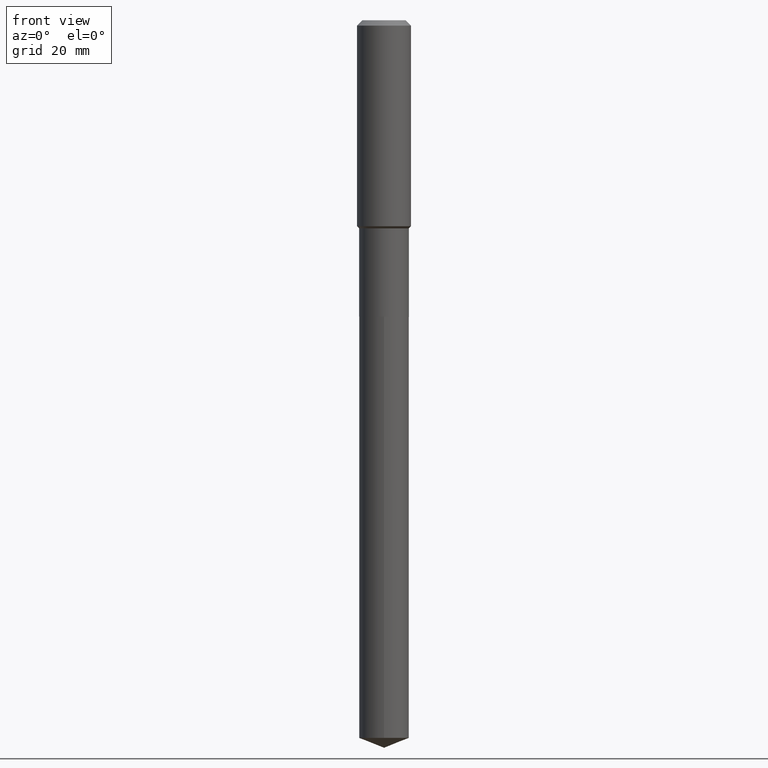
[diagram: clean part render]
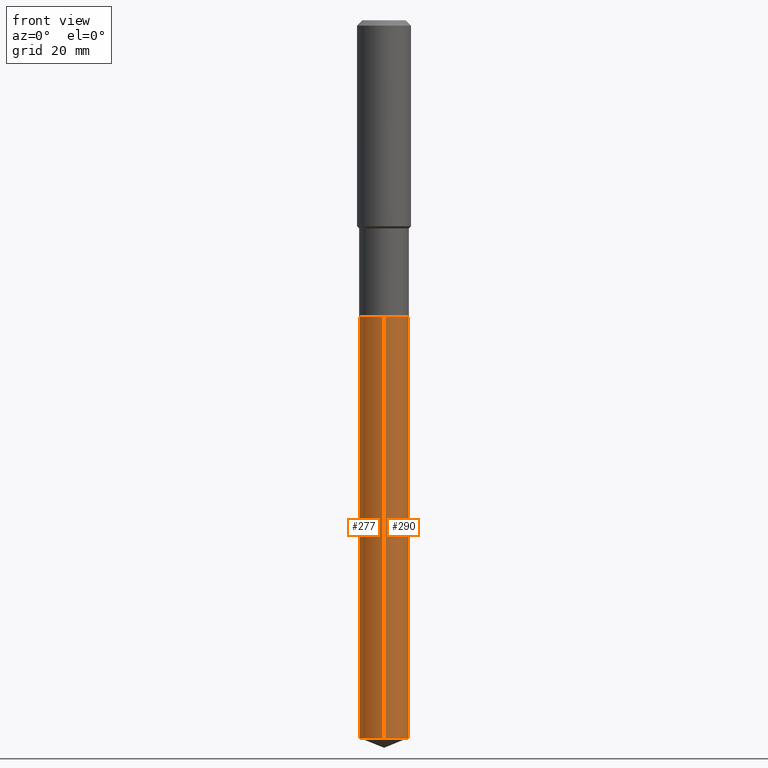
[diagram: same view with one multi-face feature highlighted, each face labeled with its STEP entity id]
A machine part, front view. The highlighted faces form ONE feature: a constant-radius fillet chain: 2 tangent blend faces with common blend radius 5.5499 mm. The faces share edges in the B-rep.
Their STEP definitions:
[1] entity #290 (Cylinder):
#22 = DIRECTION ( 'NONE',  ( -2.445449169258695004E-29, 3.491509460039474509E-15, 1.000000000000000000 ) ) ;
#33 = EDGE_CURVE ( 'NONE', #104, #265, #310, .T. ) ;
#46 = CARTESIAN_POINT ( 'NONE',  ( 1.552535877635972930E-15, 0.2184999999999909237, -2.598400000000001597 ) ) ;
#47 = DIRECTION ( 'NONE',  ( -2.445449169258695004E-29, 3.491509460039474509E-15, 1.000000000000000000 ) ) ;
#49 = ORIENTED_EDGE ( 'NONE', *, *, #206, .F. ) ;
#54 = DIRECTION ( 'NONE',  ( -2.445449169258695004E-29, 3.491509460039474509E-15, 1.000000000000000000 ) ) ;
#57 = DIRECTION ( 'NONE',  ( -6.982962677686265922E-15, -1.000000000000000000, 2.500547362621751271E-15 ) ) ;
#66 = VECTOR ( 'NONE', #482, 39.37007874015748143 ) ;
#69 = CARTESIAN_POINT ( 'NONE',  ( -1.525777345074385639E-15, -0.2185000000000090759, -2.598400000000000265 ) ) ;
#84 = EDGE_CURVE ( 'NONE', #265, #386, #287, .T. ) ;
#104 = VERTEX_POINT ( 'NONE', #261 ) ;
#116 = ORIENTED_EDGE ( 'NONE', *, *, #33, .T. ) ;
#145 = CARTESIAN_POINT ( 'NONE',  ( -1.525777345074385639E-15, -0.2185000000000090759, -2.598400000000000265 ) ) ;
#190 = ORIENTED_EDGE ( 'NONE', *, *, #84, .T. ) ;
#206 = EDGE_CURVE ( 'NONE', #285, #386, #442, .T. ) ;
#209 = EDGE_LOOP ( 'NONE', ( #116, #190, #49, #391 ) ) ;
#229 = LINE ( 'NONE', #145, #66 ) ;
#232 = EDGE_CURVE ( 'NONE', #104, #285, #229, .T. ) ;
#233 = AXIS2_PLACEMENT_3D ( 'NONE', #354, #47, #468 ) ;
#261 = CARTESIAN_POINT ( 'NONE',  ( -1.525777345074295314E-15, -0.2185000000000220099, -6.291830561078135098 ) ) ;
#263 = CYLINDRICAL_SURFACE ( 'NONE', #315, 0.2184999999999999998 ) ;
#265 = VERTEX_POINT ( 'NONE', #374 ) ;
#285 = VERTEX_POINT ( 'NONE', #69 ) ;
#287 = LINE ( 'NONE', #476, #302 ) ;
#290 = ADVANCED_FACE ( 'NONE', ( #490 ), #263, .T. ) ;
#300 = CARTESIAN_POINT ( 'NONE',  ( 6.354306145991460877E-29, -9.072265110850034200E-15, -2.598400000000000709 ) ) ;
#302 = VECTOR ( 'NONE', #22, 39.37007874015748143 ) ;
#310 = CIRCLE ( 'NONE', #233, 0.2184999999999999998 ) ;
#315 = AXIS2_PLACEMENT_3D ( 'NONE', #300, #372, #342 ) ;
#342 = DIRECTION ( 'NONE',  ( -6.982962677686265922E-15, -1.000000000000000000, 2.500547362621751271E-15 ) ) ;
#354 = CARTESIAN_POINT ( 'NONE',  ( 1.538640284329466373E-28, -2.196791285485324773E-14, -6.291830561078136874 ) ) ;
#369 = AXIS2_PLACEMENT_3D ( 'NONE', #398, #54, #57 ) ;
#372 = DIRECTION ( 'NONE',  ( -2.445449169258695004E-29, 3.491509460039474509E-15, 1.000000000000000000 ) ) ;
#374 = CARTESIAN_POINT ( 'NONE',  ( 1.552535877635972930E-15, 0.2184999999999780729, -6.291830561078137762 ) ) ;
#386 = VERTEX_POINT ( 'NONE', #46 ) ;
#391 = ORIENTED_EDGE ( 'NONE', *, *, #232, .F. ) ;
#398 = CARTESIAN_POINT ( 'NONE',  ( 6.354306145991460877E-29, -9.072265110850034200E-15, -2.598400000000000709 ) ) ;
#442 = CIRCLE ( 'NONE', #369, 0.2184999999999999998 ) ;
#468 = DIRECTION ( 'NONE',  ( -6.982962677686265922E-15, -1.000000000000000000, 5.001094725243502542E-15 ) ) ;
#476 = CARTESIAN_POINT ( 'NONE',  ( 1.552535877635882211E-15, 0.2184999999999909237, -2.598400000000001597 ) ) ;
#482 = DIRECTION ( 'NONE',  ( -2.445449169258695004E-29, 3.491509460039474509E-15, 1.000000000000000000 ) ) ;
#490 = FACE_OUTER_BOUND ( 'NONE', #209, .T. ) ;
[2] entity #277 (Cylinder):
#8 = ORIENTED_EDGE ( 'NONE', *, *, #232, .T. ) ;
#22 = DIRECTION ( 'NONE',  ( -2.445449169258695004E-29, 3.491509460039474509E-15, 1.000000000000000000 ) ) ;
#46 = CARTESIAN_POINT ( 'NONE',  ( 1.552535877635972930E-15, 0.2184999999999909237, -2.598400000000001597 ) ) ;
#66 = VECTOR ( 'NONE', #482, 39.37007874015748143 ) ;
#69 = CARTESIAN_POINT ( 'NONE',  ( -1.525777345074385639E-15, -0.2185000000000090759, -2.598400000000000265 ) ) ;
#73 = AXIS2_PLACEMENT_3D ( 'NONE', #444, #327, #323 ) ;
#84 = EDGE_CURVE ( 'NONE', #265, #386, #287, .T. ) ;
#101 = EDGE_CURVE ( 'NONE', #265, #104, #293, .T. ) ;
#104 = VERTEX_POINT ( 'NONE', #261 ) ;
#109 = DIRECTION ( 'NONE',  ( -6.982962677686265922E-15, -1.000000000000000000, 2.500547362621751271E-15 ) ) ;
#110 = FACE_OUTER_BOUND ( 'NONE', #153, .T. ) ;
#112 = AXIS2_PLACEMENT_3D ( 'NONE', #146, #227, #109 ) ;
#145 = CARTESIAN_POINT ( 'NONE',  ( -1.525777345074385639E-15, -0.2185000000000090759, -2.598400000000000265 ) ) ;
#146 = CARTESIAN_POINT ( 'NONE',  ( 6.354306145991460877E-29, -9.072265110850034200E-15, -2.598400000000000709 ) ) ;
#153 = EDGE_LOOP ( 'NONE', ( #248, #166, #8, #483 ) ) ;
#166 = ORIENTED_EDGE ( 'NONE', *, *, #101, .T. ) ;
#225 = DIRECTION ( 'NONE',  ( -6.982962677686265922E-15, -1.000000000000000000, 2.500547362621751271E-15 ) ) ;
#227 = DIRECTION ( 'NONE',  ( -2.445449169258695004E-29, 3.491509460039474509E-15, 1.000000000000000000 ) ) ;
#229 = LINE ( 'NONE', #145, #66 ) ;
#232 = EDGE_CURVE ( 'NONE', #104, #285, #229, .T. ) ;
#248 = ORIENTED_EDGE ( 'NONE', *, *, #84, .F. ) ;
#258 = EDGE_CURVE ( 'NONE', #386, #285, #484, .T. ) ;
#261 = CARTESIAN_POINT ( 'NONE',  ( -1.525777345074295314E-15, -0.2185000000000220099, -6.291830561078135098 ) ) ;
#265 = VERTEX_POINT ( 'NONE', #374 ) ;
#277 = ADVANCED_FACE ( 'NONE', ( #110 ), #370, .T. ) ;
#285 = VERTEX_POINT ( 'NONE', #69 ) ;
#287 = LINE ( 'NONE', #476, #302 ) ;
#293 = CIRCLE ( 'NONE', #73, 0.2184999999999999998 ) ;
#297 = DIRECTION ( 'NONE',  ( -2.445449169258695004E-29, 3.491509460039474509E-15, 1.000000000000000000 ) ) ;
#302 = VECTOR ( 'NONE', #22, 39.37007874015748143 ) ;
#323 = DIRECTION ( 'NONE',  ( -6.982962677686265922E-15, -1.000000000000000000, 5.001094725243502542E-15 ) ) ;
#327 = DIRECTION ( 'NONE',  ( -2.445449169258695004E-29, 3.491509460039474509E-15, 1.000000000000000000 ) ) ;
#370 = CYLINDRICAL_SURFACE ( 'NONE', #378, 0.2184999999999999998 ) ;
#374 = CARTESIAN_POINT ( 'NONE',  ( 1.552535877635972930E-15, 0.2184999999999780729, -6.291830561078137762 ) ) ;
#378 = AXIS2_PLACEMENT_3D ( 'NONE', #445, #297, #225 ) ;
#386 = VERTEX_POINT ( 'NONE', #46 ) ;
#444 = CARTESIAN_POINT ( 'NONE',  ( 1.538640284329466373E-28, -2.196791285485324773E-14, -6.291830561078136874 ) ) ;
#445 = CARTESIAN_POINT ( 'NONE',  ( 6.354306145991460877E-29, -9.072265110850034200E-15, -2.598400000000000709 ) ) ;
#476 = CARTESIAN_POINT ( 'NONE',  ( 1.552535877635882211E-15, 0.2184999999999909237, -2.598400000000001597 ) ) ;
#482 = DIRECTION ( 'NONE',  ( -2.445449169258695004E-29, 3.491509460039474509E-15, 1.000000000000000000 ) ) ;
#483 = ORIENTED_EDGE ( 'NONE', *, *, #258, .F. ) ;
#484 = CIRCLE ( 'NONE', #112, 0.2184999999999999998 ) ;